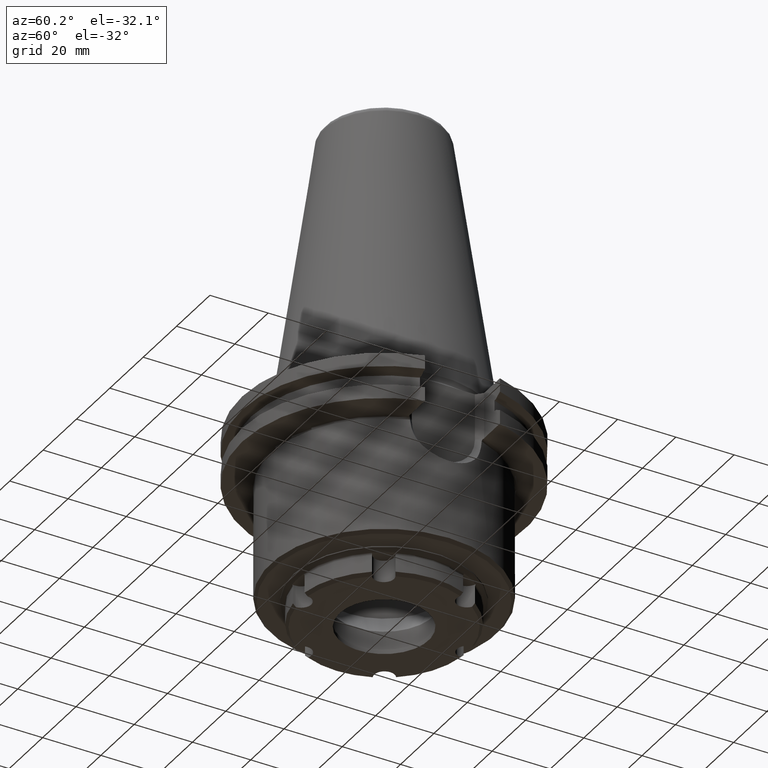
[diagram: clean part render]
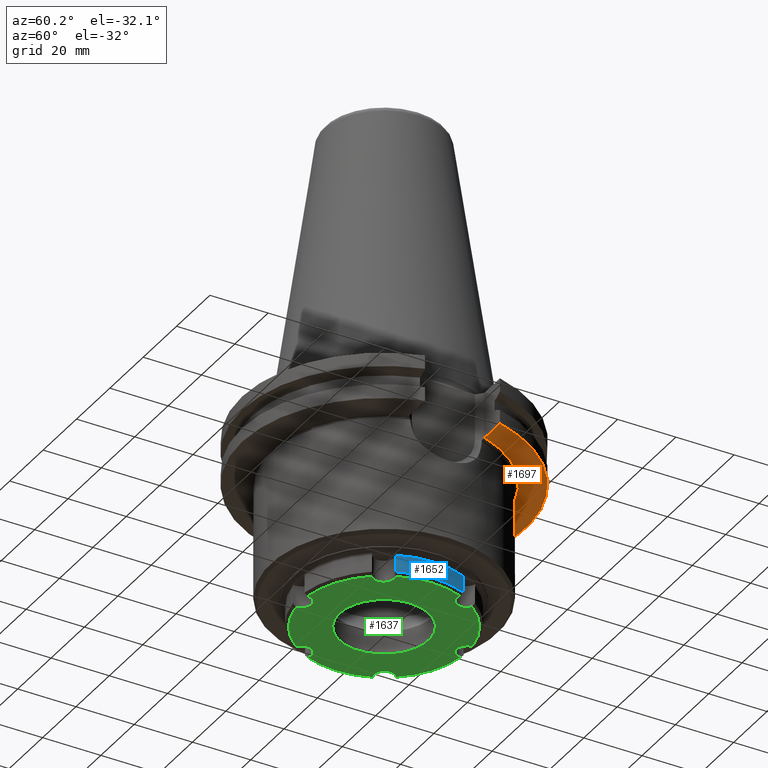
[diagram: same view with three faces highlighted in distinct colors, each labeled with its STEP entity id]
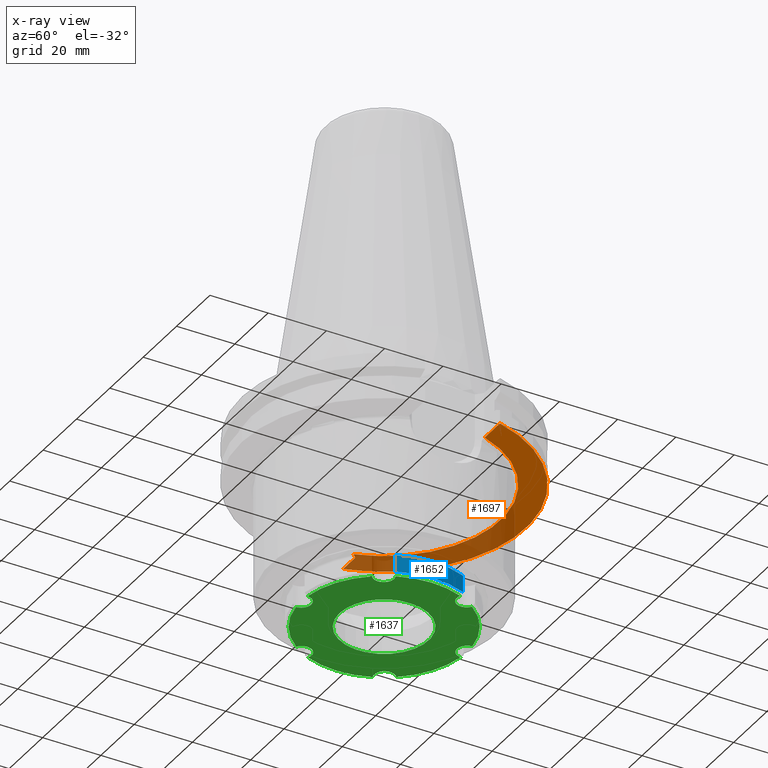
[diagram: x-ray of the same camera — body ghosted, the three highlighted faces saturated]
A machine part, auxiliary view with three faces highlighted in distinct colors.
The next image is the same camera in x-ray (body ghosted, the three faces saturated) — at least one of them is partly hidden behind the body in this view.
Their STEP definitions:

[orange] entity #1697 — the highlighted planar face has unit normal (0, 0, -1).
#93=LINE('',#2931,#193);
#94=LINE('',#2935,#194);
#95=LINE('',#2937,#195);
#96=LINE('',#2938,#196);
#97=LINE('',#2940,#197);
#193=VECTOR('',#2271,1000.);
#194=VECTOR('',#2274,1000.);
#195=VECTOR('',#2275,1000.);
#196=VECTOR('',#2276,1000.);
#197=VECTOR('',#2277,1000.);
#284=PLANE('',#1880);
#353=CIRCLE('',#1848,48.75);
#369=CIRCLE('',#1877,48.75);
#371=CIRCLE('',#1881,40.);
#702=ORIENTED_EDGE('',*,*,#1075,.T.);
#703=ORIENTED_EDGE('',*,*,#1076,.T.);
#704=ORIENTED_EDGE('',*,*,#1077,.T.);
#705=ORIENTED_EDGE('',*,*,#1078,.T.);
#706=ORIENTED_EDGE('',*,*,#1069,.T.);
#707=ORIENTED_EDGE('',*,*,#1079,.F.);
#708=ORIENTED_EDGE('',*,*,#1080,.F.);
#709=ORIENTED_EDGE('',*,*,#1030,.T.);
#1030=EDGE_CURVE('',#1234,#1235,#353,.T.);
#1069=EDGE_CURVE('',#1265,#1264,#369,.T.);
#1075=EDGE_CURVE('',#1235,#1269,#93,.T.);
#1076=EDGE_CURVE('',#1269,#1270,#371,.F.);
#1077=EDGE_CURVE('',#1270,#1271,#94,.T.);
#1078=EDGE_CURVE('',#1271,#1265,#95,.T.);
#1079=EDGE_CURVE('',#1272,#1264,#96,.T.);
#1080=EDGE_CURVE('',#1234,#1272,#97,.T.);
#1234=VERTEX_POINT('',#2811);
#1235=VERTEX_POINT('',#2813);
#1264=VERTEX_POINT('',#2918);
#1265=VERTEX_POINT('',#2920);
#1269=VERTEX_POINT('',#2932);
#1270=VERTEX_POINT('',#2934);
#1271=VERTEX_POINT('',#2936);
#1272=VERTEX_POINT('',#2939);
#1448=EDGE_LOOP('',(#702,#703,#704,#705,#706,#707,#708,#709));
#1565=FACE_BOUND('',#1448,.T.);
#1697=ADVANCED_FACE('',(#1565),#284,.T.);
#1848=AXIS2_PLACEMENT_3D('',#2814,#2186,#2187);
#1877=AXIS2_PLACEMENT_3D('',#2919,#2259,#2260);
#1880=AXIS2_PLACEMENT_3D('',#2930,#2269,#2270);
#1881=AXIS2_PLACEMENT_3D('',#2933,#2272,#2273);
#2186=DIRECTION('',(0.,2.22044604925031E-16,-1.));
#2187=DIRECTION('',(-1.,0.,0.));
#2259=DIRECTION('',(0.,2.22044604925031E-16,-1.));
#2260=DIRECTION('',(-1.,0.,0.));
#2269=DIRECTION('',(0.,2.22044604925031E-16,-1.));
#2270=DIRECTION('',(-1.,0.,0.));
#2271=DIRECTION('',(-1.,-1.75217359979085E-16,-2.91795521044221E-32));
#2272=DIRECTION('',(0.,2.22044604925031E-16,-1.));
#2273=DIRECTION('',(-1.,0.,0.));
#2274=DIRECTION('',(-0.707106781186549,0.707106781186546,1.17756934401283E-16));
#2275=DIRECTION('',(-1.,1.75217359979085E-16,2.91795521044222E-32));
#2276=DIRECTION('',(-1.,0.,0.));
#2277=DIRECTION('',(-1.59948402644759E-16,-1.,-1.66533453693773E-16));
#2811=CARTESIAN_POINT('',(-30.,38.4260653723485,-19.1));
#2813=CARTESIAN_POINT('',(47.025950282796,12.85,-19.1));
#2814=CARTESIAN_POINT('',(0.,4.2410519540681E-15,-19.1));
#2918=CARTESIAN_POINT('',(-38.4260653723485,30.,-19.1));
#2919=CARTESIAN_POINT('',(0.,4.2410519540681E-15,-19.1));
#2920=CARTESIAN_POINT('',(-47.025950282796,12.85,-19.1));
#2930=CARTESIAN_POINT('',(-48.75,4.2410519540681E-15,-19.1));
#2931=CARTESIAN_POINT('',(-48.75,12.85,-19.1));
#2932=CARTESIAN_POINT('',(37.8797769264815,12.85,-19.1));
#2933=CARTESIAN_POINT('',(0.,4.2410519540681E-15,-19.1));
#2934=CARTESIAN_POINT('',(-38.3201677037934,11.4701677037934,-19.1));
#2935=CARTESIAN_POINT('',(-37.8,10.95,-19.1));
#2936=CARTESIAN_POINT('',(-39.7,12.85,-19.1));
#2937=CARTESIAN_POINT('',(-48.75,12.85,-19.1));
#2938=CARTESIAN_POINT('',(-48.75,30.,-19.1));
#2939=CARTESIAN_POINT('',(-30.,30.,-19.1));
#2940=CARTESIAN_POINT('',(-30.,1.24201940447887E-15,-19.1));

[blue] entity #1652 — the highlighted cylindrical surface (partial cylindrical patch) has radius 29.5 mm, axis along (-0, 0, -1).
#50=LINE('',#2663,#150);
#51=LINE('',#2667,#151);
#150=VECTOR('',#2052,1000.);
#151=VECTOR('',#2055,1000.);
#237=CYLINDRICAL_SURFACE('',#1792,29.5);
#308=CIRCLE('',#1756,29.5);
#328=CIRCLE('',#1793,29.5);
#506=ORIENTED_EDGE('',*,*,#971,.F.);
#507=ORIENTED_EDGE('',*,*,#972,.T.);
#508=ORIENTED_EDGE('',*,*,#973,.F.);
#509=ORIENTED_EDGE('',*,*,#914,.F.);
#914=EDGE_CURVE('',#1165,#1167,#308,.T.);
#971=EDGE_CURVE('',#1204,#1165,#50,.T.);
#972=EDGE_CURVE('',#1204,#1205,#328,.T.);
#973=EDGE_CURVE('',#1167,#1205,#51,.F.);
#1165=VERTEX_POINT('',#2499);
#1167=VERTEX_POINT('',#2502);
#1204=VERTEX_POINT('',#2664);
#1205=VERTEX_POINT('',#2666);
#1400=EDGE_LOOP('',(#506,#507,#508,#509));
#1517=FACE_BOUND('',#1400,.T.);
#1652=ADVANCED_FACE('',(#1517),#237,.T.);
#1756=AXIS2_PLACEMENT_3D('',#2501,#1958,#1959);
#1792=AXIS2_PLACEMENT_3D('',#2662,#2050,#2051);
#1793=AXIS2_PLACEMENT_3D('',#2665,#2053,#2054);
#1958=DIRECTION('',(-4.42617567199454E-16,4.72630395128287E-16,-1.));
#1959=DIRECTION('',(-1.11022302462516E-16,-1.,-2.57286887493655E-16));
#2050=DIRECTION('',(-4.42617567199454E-16,4.72630395128287E-16,-1.));
#2051=DIRECTION('',(-1.11022302462516E-16,-1.,-2.57286887493655E-16));
#2052=DIRECTION('',(-4.42617567199454E-16,4.72630395128287E-16,-1.));
#2053=DIRECTION('',(-4.42617567199454E-16,4.72630395128287E-16,-1.));
#2054=DIRECTION('',(-1.11022302462516E-16,-1.,-2.57286887493655E-16));
#2055=DIRECTION('',(-4.42617567199454E-16,4.72630395128287E-16,-1.));
#2499=CARTESIAN_POINT('',(27.1173017879317,11.6147296026313,-68.));
#2501=CARTESIAN_POINT('',(-9.07366012758882E-15,1.67665948821153E-14,-68.));
#2502=CARTESIAN_POINT('',(27.1173017879316,-11.6147296026313,-68.));
#2662=CARTESIAN_POINT('',(-9.51627769478827E-15,1.72392252772435E-14,-69.));
#2663=CARTESIAN_POINT('',(27.1173017879317,11.6147296026313,-69.));
#2664=CARTESIAN_POINT('',(27.1173017879317,11.6147296026313,-62.2071067811866));
#2665=CARTESIAN_POINT('',(-6.50962382403139E-15,1.40286974711715E-14,-62.2071067811865));
#2666=CARTESIAN_POINT('',(27.1173017879316,-11.6147296026313,-62.2071067811866));
#2667=CARTESIAN_POINT('',(27.1173017879316,-11.6147296026313,-69.));

[green] entity #1637 — the highlighted planar face has unit normal (0, -0, 1).
#258=PLANE('',#1761);
#303=CIRCLE('',#1748,28.5);
#305=CIRCLE('',#1751,28.5);
#307=CIRCLE('',#1754,28.5);
#309=CIRCLE('',#1757,28.5);
#311=CIRCLE('',#1760,28.5);
#312=CIRCLE('',#1762,15.3249999999998);
#313=CIRCLE('',#1763,3.5);
#314=CIRCLE('',#1764,3.5);
#315=CIRCLE('',#1765,3.5);
#316=CIRCLE('',#1766,3.5);
#317=CIRCLE('',#1767,3.5);
#318=CIRCLE('',#1768,3.5);
#319=CIRCLE('',#1769,28.5);
#421=ORIENTED_EDGE('',*,*,#925,.F.);
#422=ORIENTED_EDGE('',*,*,#926,.T.);
#423=ORIENTED_EDGE('',*,*,#899,.T.);
#424=ORIENTED_EDGE('',*,*,#927,.T.);
#425=ORIENTED_EDGE('',*,*,#905,.T.);
#426=ORIENTED_EDGE('',*,*,#928,.T.);
#427=ORIENTED_EDGE('',*,*,#911,.T.);
#428=ORIENTED_EDGE('',*,*,#929,.T.);
#429=ORIENTED_EDGE('',*,*,#917,.T.);
#430=ORIENTED_EDGE('',*,*,#930,.T.);
#431=ORIENTED_EDGE('',*,*,#923,.T.);
#432=ORIENTED_EDGE('',*,*,#931,.T.);
#433=ORIENTED_EDGE('',*,*,#932,.T.);
#899=EDGE_CURVE('',#1152,#1151,#303,.T.);
#905=EDGE_CURVE('',#1158,#1157,#305,.T.);
#911=EDGE_CURVE('',#1164,#1163,#307,.T.);
#917=EDGE_CURVE('',#1170,#1169,#309,.T.);
#923=EDGE_CURVE('',#1176,#1175,#311,.T.);
#925=EDGE_CURVE('',#1177,#1177,#312,.F.);
#926=EDGE_CURVE('',#1178,#1152,#313,.T.);
#927=EDGE_CURVE('',#1151,#1158,#314,.T.);
#928=EDGE_CURVE('',#1157,#1164,#315,.T.);
#929=EDGE_CURVE('',#1163,#1170,#316,.T.);
#930=EDGE_CURVE('',#1169,#1176,#317,.T.);
#931=EDGE_CURVE('',#1175,#1179,#318,.T.);
#932=EDGE_CURVE('',#1179,#1178,#319,.T.);
#1151=VERTEX_POINT('',#2437);
#1152=VERTEX_POINT('',#2439);
#1157=VERTEX_POINT('',#2462);
#1158=VERTEX_POINT('',#2464);
#1163=VERTEX_POINT('',#2487);
#1164=VERTEX_POINT('',#2489);
#1169=VERTEX_POINT('',#2512);
#1170=VERTEX_POINT('',#2514);
#1175=VERTEX_POINT('',#2537);
#1176=VERTEX_POINT('',#2539);
#1177=VERTEX_POINT('',#2546);
#1178=VERTEX_POINT('',#2548);
#1179=VERTEX_POINT('',#2554);
#1384=EDGE_LOOP('',(#421));
#1385=EDGE_LOOP('',(#422,#423,#424,#425,#426,#427,#428,#429,#430,#431,#432,
#433));
#1501=FACE_BOUND('',#1384,.T.);
#1502=FACE_BOUND('',#1385,.T.);
#1637=ADVANCED_FACE('',(#1501,#1502),#258,.F.);
#1748=AXIS2_PLACEMENT_3D('',#2438,#1942,#1943);
#1751=AXIS2_PLACEMENT_3D('',#2463,#1948,#1949);
#1754=AXIS2_PLACEMENT_3D('',#2488,#1954,#1955);
#1757=AXIS2_PLACEMENT_3D('',#2513,#1960,#1961);
#1760=AXIS2_PLACEMENT_3D('',#2538,#1966,#1967);
#1761=AXIS2_PLACEMENT_3D('',#2544,#1968,#1969);
#1762=AXIS2_PLACEMENT_3D('',#2545,#1970,#1971);
#1763=AXIS2_PLACEMENT_3D('',#2547,#1972,#1973);
#1764=AXIS2_PLACEMENT_3D('',#2549,#1974,#1975);
#1765=AXIS2_PLACEMENT_3D('',#2550,#1976,#1977);
#1766=AXIS2_PLACEMENT_3D('',#2551,#1978,#1979);
#1767=AXIS2_PLACEMENT_3D('',#2552,#1980,#1981);
#1768=AXIS2_PLACEMENT_3D('',#2553,#1982,#1983);
#1769=AXIS2_PLACEMENT_3D('',#2555,#1984,#1985);
#1942=DIRECTION('',(-4.42617567199454E-16,4.72630395128287E-16,-1.));
#1943=DIRECTION('',(-1.11022302462516E-16,-1.,-2.57286887493655E-16));
#1948=DIRECTION('',(-4.42617567199454E-16,4.72630395128287E-16,-1.));
#1949=DIRECTION('',(-1.11022302462516E-16,-1.,-2.57286887493655E-16));
#1954=DIRECTION('',(-4.42617567199454E-16,4.72630395128287E-16,-1.));
#1955=DIRECTION('',(-1.11022302462516E-16,-1.,-2.57286887493655E-16));
#1960=DIRECTION('',(-4.42617567199454E-16,4.72630395128287E-16,-1.));
#1961=DIRECTION('',(-1.11022302462516E-16,-1.,-2.57286887493655E-16));
#1966=DIRECTION('',(-4.42617567199454E-16,4.72630395128287E-16,-1.));
#1967=DIRECTION('',(-1.11022302462516E-16,-1.,-2.57286887493655E-16));
#1968=DIRECTION('',(4.42617567199454E-16,-4.72630395128287E-16,1.));
#1969=DIRECTION('',(1.11022302462516E-16,1.,2.57286887493655E-16));
#1970=DIRECTION('',(4.42617567199454E-16,-4.72630395128287E-16,1.));
#1971=DIRECTION('',(0.,-1.,-4.72630395128287E-16));
#1972=DIRECTION('',(4.42617567199454E-16,-4.72630395128287E-16,1.));
#1973=DIRECTION('',(0.499999999999999,-0.866025403784439,-4.91173750233236E-16));
#1974=DIRECTION('',(4.42617567199454E-16,-4.72630395128287E-16,1.));
#1975=DIRECTION('',(-0.500000000000001,-0.866025403784438,4.55397889729684E-17));
#1976=DIRECTION('',(4.42617567199454E-16,-4.72630395128287E-16,1.));
#1977=DIRECTION('',(-1.,-2.19609194569437E-16,5.36713539206204E-16));
#1978=DIRECTION('',(4.42617567199454E-16,-4.72630395128287E-16,1.));
#1979=DIRECTION('',(-0.5,0.866025403784439,4.91173750233236E-16));
#1980=DIRECTION('',(4.42617567199454E-16,-4.72630395128287E-16,1.));
#1981=DIRECTION('',(0.5,0.866025403784439,-4.5539788972968E-17));
#1982=DIRECTION('',(4.42617567199454E-16,-4.72630395128287E-16,1.));
#1983=DIRECTION('',(1.,9.71445146547012E-17,-5.36713539206204E-16));
#1984=DIRECTION('',(-4.42617567199454E-16,4.72630395128287E-16,-1.));
#1985=DIRECTION('',(-1.11022302462516E-16,-1.,-2.57286887493655E-16));
#2437=CARTESIAN_POINT('',(-26.2423023055623,11.1171745377807,-69.));
#2438=CARTESIAN_POINT('',(-9.51627769478827E-15,1.72392252772435E-14,-69.));
#2439=CARTESIAN_POINT('',(-26.2423023055623,-11.1171745377807,-69.));
#2462=CARTESIAN_POINT('',(-3.49339558475756,28.2850877192983,-69.));
#2463=CARTESIAN_POINT('',(-9.51627769478827E-15,1.72392252772435E-14,-69.));
#2464=CARTESIAN_POINT('',(-22.7489067208047,17.1679131815176,-69.));
#2487=CARTESIAN_POINT('',(22.7489067208048,17.1679131815176,-69.));
#2488=CARTESIAN_POINT('',(-9.51627769478827E-15,1.72392252772435E-14,-69.));
#2489=CARTESIAN_POINT('',(3.49339558475754,28.2850877192983,-69.));
#2512=CARTESIAN_POINT('',(26.2423023055623,-11.1171745377807,-69.));
#2513=CARTESIAN_POINT('',(-9.51627769478827E-15,1.72392252772435E-14,-69.));
#2514=CARTESIAN_POINT('',(26.2423023055623,11.1171745377807,-69.));
#2537=CARTESIAN_POINT('',(3.49339558475754,-28.2850877192982,-69.));
#2538=CARTESIAN_POINT('',(-9.51627769478827E-15,1.72392252772435E-14,-69.));
#2539=CARTESIAN_POINT('',(22.7489067208047,-17.1679131815175,-69.));
#2544=CARTESIAN_POINT('',(-1.268041331497E-14,-28.5,-69.));
#2545=CARTESIAN_POINT('',(0.,0.,-69.));
#2546=CARTESIAN_POINT('',(0.,-15.3249999999998,-69.));
#2547=CARTESIAN_POINT('',(-24.6817240078565,-14.25,-69.));
#2548=CARTESIAN_POINT('',(-22.7489067208048,-17.1679131815175,-69.));
#2549=CARTESIAN_POINT('',(-24.6817240078565,14.25,-69.));
#2550=CARTESIAN_POINT('',(-9.84238545217654E-15,28.5,-69.));
#2551=CARTESIAN_POINT('',(24.6817240078565,14.25,-69.));
#2552=CARTESIAN_POINT('',(24.6817240078565,-14.25,-69.));
#2553=CARTESIAN_POINT('',(-1.268041331497E-14,-28.5,-69.));
#2554=CARTESIAN_POINT('',(-3.49339558475756,-28.2850877192982,-69.));
#2555=CARTESIAN_POINT('',(-9.51627769478827E-15,1.72392252772435E-14,-69.));